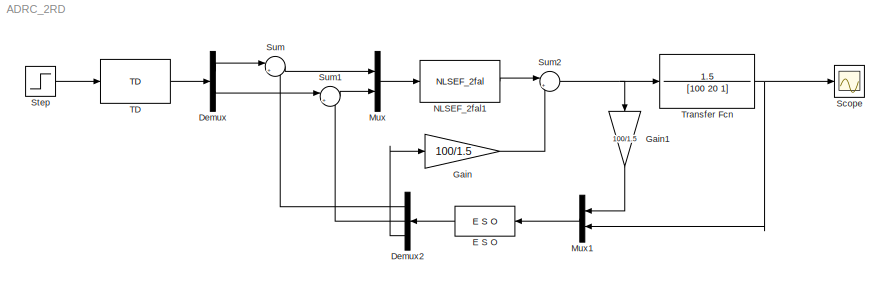
MODEL ADRC_2RD
KIND model
BLOCK [Demux] Demux
  DisplayOption = bar
  Outputs = 2
  Ports = [1, 2]
  SID = 11
BLOCK [Demux] Demux2
  DisplayOption = bar
  Outputs = 3
  Ports = [1, 3]
  SID = 21
BLOCK [Reference] E S O  REF=ADRC/ESO/E S O
  BB = [100,34,32]
  Delta = 0.1
  Ports = [1, 1]
  SID = 34
  SourceBlock = ADRC/ESO/E S O
  SourceType = Unknown
  h2 = 0.1
BLOCK [Gain] Gain
  Gain = 100/1.5
  OutDataTypeStr = Inherit: Inherit via internal rule
  ParamDataTypeStr = Inherit: Inherit via internal rule
  SID = 24
  SaturateOnIntegerOverflow = off
BLOCK [Gain] Gain1
  Gain = 100/1.5
  OutDataTypeStr = Inherit: Inherit via internal rule
  ParamDataTypeStr = Inherit: Inherit via internal rule
  SID = 25
  SaturateOnIntegerOverflow = off
BLOCK [Mux] Mux
  DisplayOption = bar
  Inputs = 2
  Ports = [2, 1]
  SID = 12
BLOCK [Mux] Mux1
  DisplayOption = bar
  Inputs = 2
  Ports = [2, 1]
  SID = 22
BLOCK [Reference] NLSEF_2fal1  REF=ADRC/NLSEF/NLSEF_2fal
  A1 = 0.25
  A2 = 0.5
  Beta1 = 20
  Beta2 = 30
  Delta = 0.01
  Ports = [1, 1]
  SID = 13
  SourceBlock = ADRC/NLSEF/NLSEF_2fal
  SourceType = Unknown
BLOCK [Scope] Scope
  DataFormat = StructureWithTime
  Floating = off
  NumInputPorts = 1
  Ports = [1]
  SID = 17
  SampleTime = 0
BLOCK [Step] Step
  SID = 8
  SampleTime = 0
  Time = 0
BLOCK [Sum] Sum
  IconShape = round
  InputSameDT = off
  Inputs = |+-
  OutDataTypeStr = Inherit: Inherit via internal rule
  Ports = [2, 1]
  SID = 16
  SaturateOnIntegerOverflow = off
BLOCK [Sum] Sum1
  IconShape = round
  InputSameDT = off
  Inputs = |+-
  OutDataTypeStr = Inherit: Inherit via internal rule
  Ports = [2, 1]
  SID = 18
  SaturateOnIntegerOverflow = off
BLOCK [Sum] Sum2
  IconShape = round
  InputSameDT = off
  Inputs = |+-
  OutDataTypeStr = Inherit: Inherit via internal rule
  Ports = [2, 1]
  SID = 23
  SaturateOnIntegerOverflow = off
BLOCK [Reference] TD  REF=ADRC/TD/TD
  Ports = [1, 1]
  SID = 10
  SourceBlock = ADRC/TD/TD
  h = 0.1
  r0 = 0.01
BLOCK [TransferFcn] Transfer Fcn
  Denominator = [100 20  1]
  Numerator = 1.5
  SID = 35
LINE Demux2:1 -> Sum:2
LINE Demux2:2 -> Sum1:2
LINE Demux2:3 -> Gain:1
LINE Demux:1 -> Sum:1
LINE Demux:2 -> Sum1:1
LINE E S O:1 -> Demux2:1
LINE Gain1:1 -> Mux1:1
LINE Gain:1 -> Sum2:2
LINE Mux1:1 -> E S O:1
LINE Mux:1 -> NLSEF_2fal1:1
LINE NLSEF_2fal1:1 -> Sum2:1
LINE Step:1 -> TD:1
LINE Sum1:1 -> Mux:2
NET Sum2:1 -> Gain1:1, Transfer Fcn:1
LINE Sum:1 -> Mux:1
LINE TD:1 -> Demux:1
NET Transfer Fcn:1 -> Mux1:2, Scope:1
note: NET lines group one-source signal fan-out (src -> all destinations, sorted); 1:1 wires keep LINE
